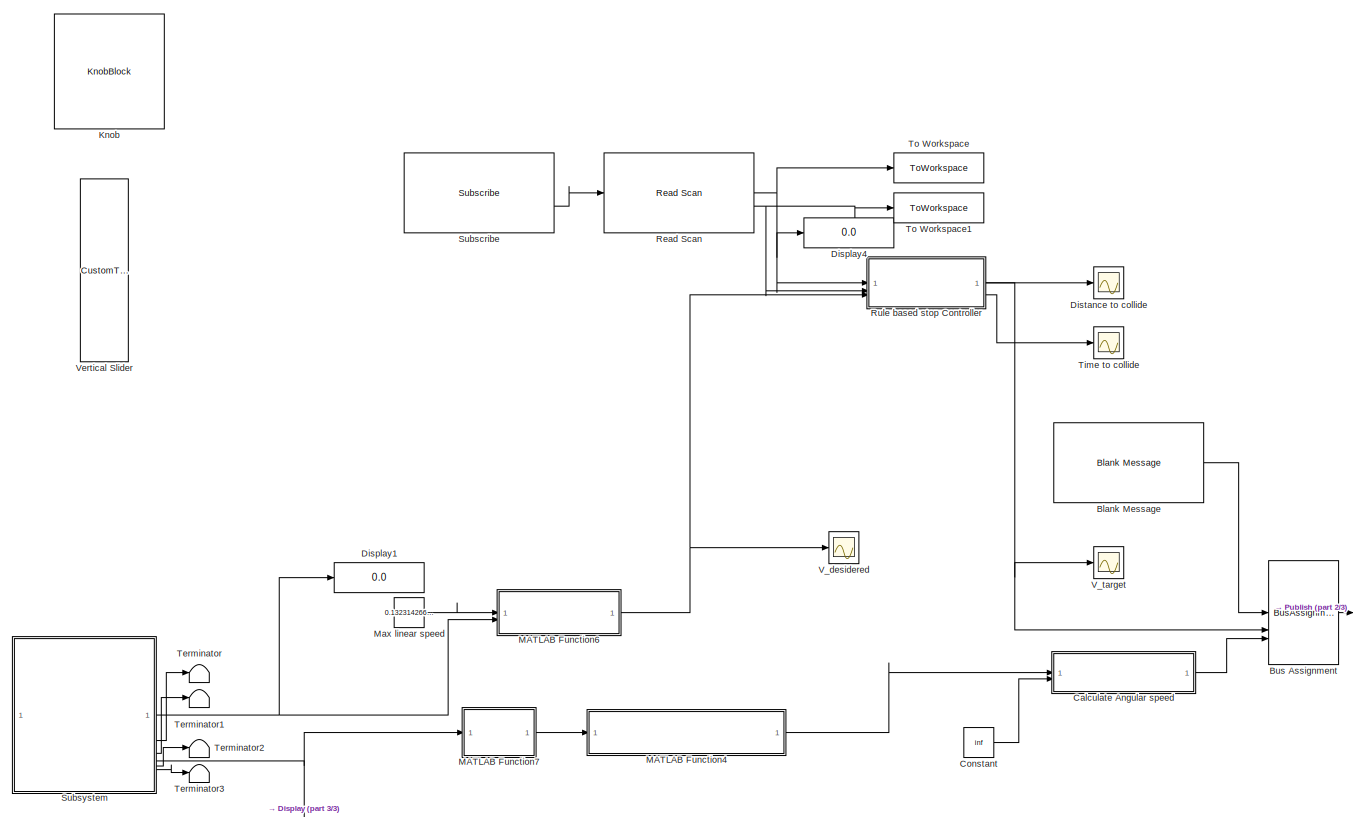
[diagram: root canvas - part 1/3, most of the canvas]
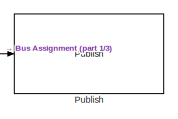
[diagram: root canvas - part 2/3, middle right region]
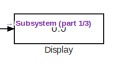
[diagram: root canvas - part 3/3, bottom left region]
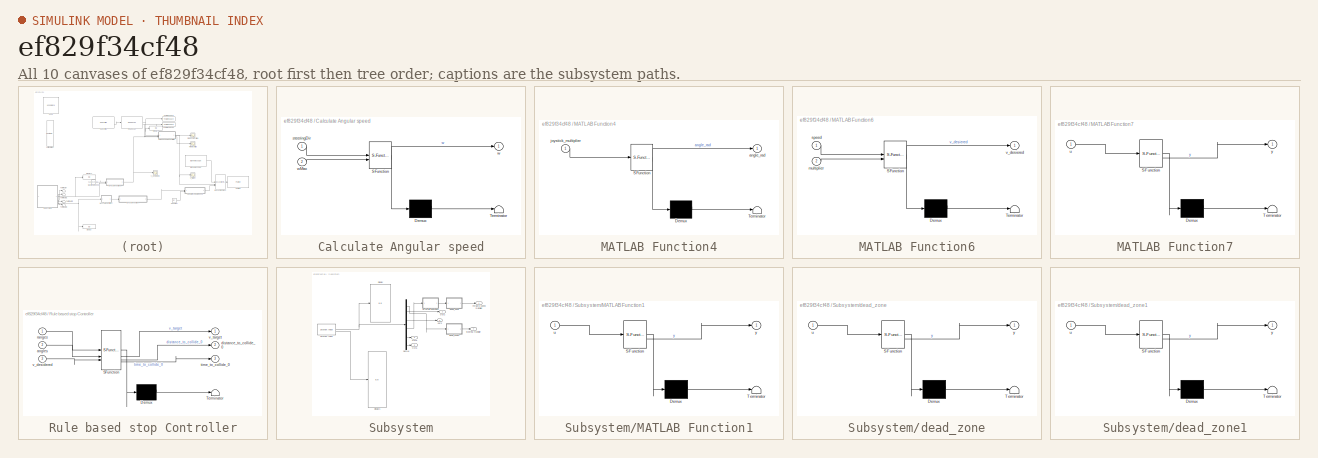
[diagram: thumbnail index - all 10 canvases of the model, root first then tree order]
MODEL slx_ef829f34cf48
KIND model
CONFIG AbsTol = auto
CONFIG EnableMultiTasking = off
CONFIG FixedStep = auto
CONFIG MaxStep = auto
CONFIG MinStep = auto
CONFIG RelTol = 1e-3
CONFIG SampleTimeConstraint = Unconstrained
CONFIG SolverName = FixedStepAuto
CONFIG StartTime = 0.0
CONFIG StopTime = inf
WORKSPACE source: mxarray member
WORKSPACE SL_ROS_VariableLengthArrays_MaxSizes: object (value not decoded)
BLOCK [Reference] Blank Message  REF=ros2lib/Blank Message  (lib defined in slx_3c1549211f48)
  SourceBlock = ros2lib/Blank Message
  SourceType = ROS2 Blank Message
BLOCK [BusAssignment] Bus Assignment
  AssignedSignals = linear.x,angular.z
BLOCK [SubSystem] Calculate Angular speed
  ErrorFcn = Stateflow.Translate.translate
  LibrarySourceBlock = simulink/User-Defined\nFunctions/MATLAB Function
  PermitHierarchicalResolution = ExplicitOnly
  SFBlockType = MATLAB Function
  TreatAsAtomicUnit = on
BLOCK [Demux] Calculate Angular speed/ Demux 
  Outputs = 1
BLOCK [S-Function] Calculate Angular speed/ SFunction 
  EnableBusSupport = on
  FunctionName = sf_sfun
  PortCounts = [2 2]
  SFcnIsStateOwnerBlock = off
  SFunctionDeploymentMode = off
  Tag = Stateflow S-Function 14
BLOCK [Terminator] Calculate Angular speed/ Terminator 
BLOCK [Inport] Calculate Angular speed/steeringDir
BLOCK [Outport] Calculate Angular speed/w
BLOCK [Inport] Calculate Angular speed/wMax
  Port = 2
BLOCK [Constant] Constant
  Value = inf
BLOCK [Display] Display
  Decimation = 1
BLOCK [Display] Display1
  Decimation = 1
BLOCK [Display] Display4
  Decimation = 1
BLOCK [Scope] Distance to collide
  Floating = off
  NumInputPorts = 1
  ScopeSpecificationString = Simulink.scopes.TimeScopeBlockCfg('CurrentConfiguration', extmgr.ConfigurationSet(extmgr.Configuration('Core','General UI',true),extmgr.Configuration('Core','Source UI',true),extmgr.Configuration('Sources','WiredSimulink',true,'DataLoggingVariableName','ScopeData1'),extmgr.Configuration('Visuals','Time Domain',true,'SerializedDisplays',{struct('MinYLimReal','0.57362','MaxYLimReal','3.32598','YLabe...<+1503ch>
BLOCK [KnobBlock] Knob
  ScaleMax = 90
  ScaleMin = -90
BLOCK [SubSystem] MATLAB Function4
  ErrorFcn = Stateflow.Translate.translate
  LibrarySourceBlock = simulink/User-Defined\nFunctions/MATLAB Function
  PermitHierarchicalResolution = ExplicitOnly
  SFBlockType = MATLAB Function
  SystemSampleTime = 0.01
  TreatAsAtomicUnit = on
BLOCK [Demux] MATLAB Function4/ Demux 
  Outputs = 1
BLOCK [S-Function] MATLAB Function4/ SFunction 
  EnableBusSupport = on
  FunctionName = sf_sfun
  PortCounts = [1 2]
  SFcnIsStateOwnerBlock = off
  SFunctionDeploymentMode = off
  Tag = Stateflow S-Function 6
BLOCK [Terminator] MATLAB Function4/ Terminator 
BLOCK [Outport] MATLAB Function4/angle_rad
BLOCK [Inport] MATLAB Function4/joystick_multiplier
BLOCK [SubSystem] MATLAB Function6
  ErrorFcn = Stateflow.Translate.translate
  LibrarySourceBlock = simulink/User-Defined\nFunctions/MATLAB Function
  PermitHierarchicalResolution = ExplicitOnly
  SFBlockType = MATLAB Function
  SystemSampleTime = 0.01
  TreatAsAtomicUnit = on
BLOCK [Demux] MATLAB Function6/ Demux 
  Outputs = 1
BLOCK [S-Function] MATLAB Function6/ SFunction 
  EnableBusSupport = on
  FunctionName = sf_sfun
  PortCounts = [2 2]
  SFcnIsStateOwnerBlock = off
  SFunctionDeploymentMode = off
  Tag = Stateflow S-Function 11
BLOCK [Terminator] MATLAB Function6/ Terminator 
BLOCK [Inport] MATLAB Function6/multiplier
  Port = 2
BLOCK [Inport] MATLAB Function6/speed
BLOCK [Outport] MATLAB Function6/v_desiered
BLOCK [SubSystem] MATLAB Function7
  ErrorFcn = Stateflow.Translate.translate
  LibrarySourceBlock = simulink/User-Defined\nFunctions/MATLAB Function
  PermitHierarchicalResolution = ExplicitOnly
  SFBlockType = MATLAB Function
  TreatAsAtomicUnit = on
BLOCK [Demux] MATLAB Function7/ Demux 
  Outputs = 1
BLOCK [S-Function] MATLAB Function7/ SFunction 
  EnableBusSupport = on
  FunctionName = sf_sfun
  PortCounts = [1 2]
  SFcnIsStateOwnerBlock = off
  SFunctionDeploymentMode = off
  Tag = Stateflow S-Function 12
BLOCK [Terminator] MATLAB Function7/ Terminator 
BLOCK [Inport] MATLAB Function7/u
BLOCK [Outport] MATLAB Function7/y
BLOCK [Constant] Max linear speed
  Value = 0.1323142669296515
BLOCK [Reference] Publish  REF=ros2lib/Publish  (lib defined in slx_3c1549211f48)
  SourceBlock = ros2lib/Publish
  SourceType = ROS2 Publish
BLOCK [Reference] Read Scan  REF=ros2lib/Read Scan  (lib defined in slx_3c1549211f48)
  SourceBlock = ros2lib/Read Scan
  SourceType = ros.slros2.internal.block.ReadScan
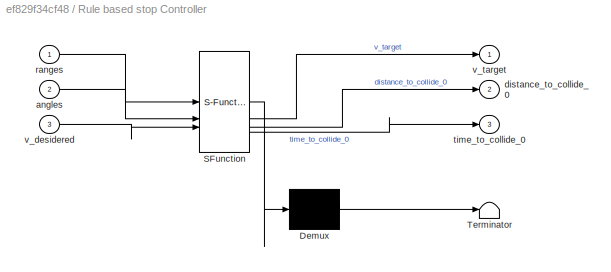
BLOCK [SubSystem] Rule based stop Controller
  ErrorFcn = Stateflow.Translate.translate
  LibrarySourceBlock = simulink/User-Defined\nFunctions/MATLAB Function
  PermitHierarchicalResolution = ExplicitOnly
  SFBlockType = MATLAB Function
  TreatAsAtomicUnit = on
BLOCK [Demux] Rule based stop Controller/ Demux 
  Outputs = 1
BLOCK [S-Function] Rule based stop Controller/ SFunction 
  EnableBusSupport = on
  FunctionName = sf_sfun
  PortCounts = [3 4]
  SFcnIsStateOwnerBlock = off
  SFunctionDeploymentMode = off
  Tag = Stateflow S-Function 8
BLOCK [Terminator] Rule based stop Controller/ Terminator 
BLOCK [Inport] Rule based stop Controller/angles
  Port = 2
BLOCK [Outport] Rule based stop Controller/distance_to_collide_0
  Port = 2
BLOCK [Inport] Rule based stop Controller/ranges
BLOCK [Outport] Rule based stop Controller/time_to_collide_0
  Port = 3
BLOCK [Inport] Rule based stop Controller/v_desidered
  Port = 3
BLOCK [Outport] Rule based stop Controller/v_target
BLOCK [Reference] Subscribe  REF=ros2lib/Subscribe  (lib defined in slx_3c1549211f48)
  SourceBlock = ros2lib/Subscribe
  SourceType = ROS2 Subscribe
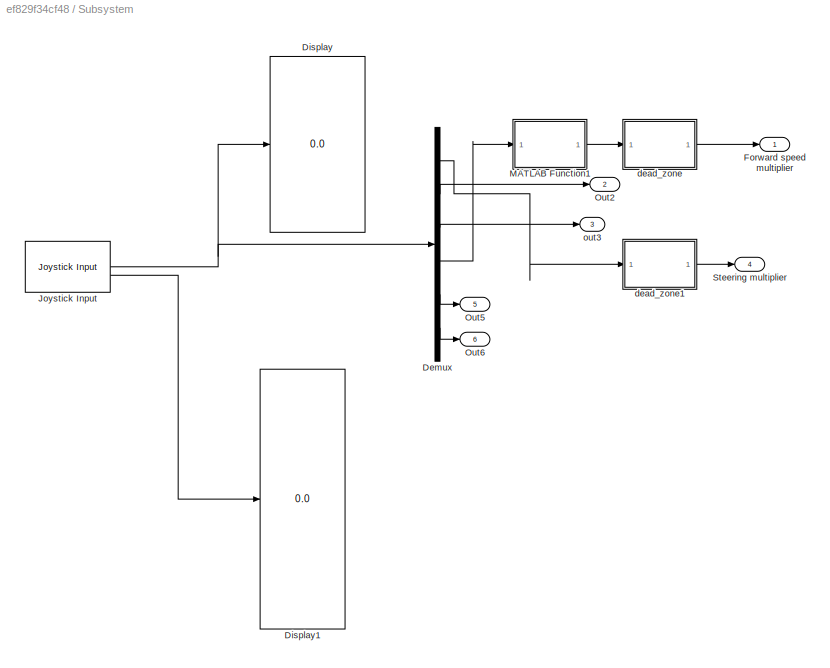
BLOCK [SubSystem] Subsystem
BLOCK [Demux] Subsystem/Demux
  Outputs = 6
BLOCK [Display] Subsystem/Display
  Decimation = 1
BLOCK [Display] Subsystem/Display1
  Decimation = 1
BLOCK [Outport] Subsystem/Forward speed multiplier
BLOCK [Reference] Subsystem/Joystick Input  REF=vrlib/Joystick Input
  SourceBlock = vrlib/Joystick Input
  SourceType = Joystick Input
BLOCK [SubSystem] Subsystem/MATLAB Function1
  ErrorFcn = Stateflow.Translate.translate
  LibrarySourceBlock = simulink/User-Defined\nFunctions/MATLAB Function
  PermitHierarchicalResolution = ExplicitOnly
  SFBlockType = MATLAB Function
  TreatAsAtomicUnit = on
BLOCK [Demux] Subsystem/MATLAB Function1/ Demux 
  Outputs = 1
BLOCK [S-Function] Subsystem/MATLAB Function1/ SFunction 
  EnableBusSupport = on
  FunctionName = sf_sfun
  PortCounts = [1 2]
  SFcnIsStateOwnerBlock = off
  SFunctionDeploymentMode = off
  Tag = Stateflow S-Function 1
BLOCK [Terminator] Subsystem/MATLAB Function1/ Terminator 
BLOCK [Inport] Subsystem/MATLAB Function1/u
BLOCK [Outport] Subsystem/MATLAB Function1/y
BLOCK [Outport] Subsystem/Out2
  Port = 2
BLOCK [Outport] Subsystem/Out5
  Port = 5
BLOCK [Outport] Subsystem/Out6
  Port = 6
BLOCK [Outport] Subsystem/Steering multiplier
  Port = 4
BLOCK [SubSystem] Subsystem/dead_zone
  ErrorFcn = Stateflow.Translate.translate
  LibrarySourceBlock = simulink/User-Defined\nFunctions/MATLAB Function
  PermitHierarchicalResolution = ExplicitOnly
  SFBlockType = MATLAB Function
  TreatAsAtomicUnit = on
BLOCK [Demux] Subsystem/dead_zone/ Demux 
  Outputs = 1
BLOCK [S-Function] Subsystem/dead_zone/ SFunction 
  EnableBusSupport = on
  FunctionName = sf_sfun
  PortCounts = [1 2]
  SFcnIsStateOwnerBlock = off
  SFunctionDeploymentMode = off
  Tag = Stateflow S-Function 3
BLOCK [Terminator] Subsystem/dead_zone/ Terminator 
BLOCK [Inport] Subsystem/dead_zone/u
BLOCK [Outport] Subsystem/dead_zone/y
BLOCK [SubSystem] Subsystem/dead_zone1
  ErrorFcn = Stateflow.Translate.translate
  LibrarySourceBlock = simulink/User-Defined\nFunctions/MATLAB Function
  PermitHierarchicalResolution = ExplicitOnly
  SFBlockType = MATLAB Function
  TreatAsAtomicUnit = on
BLOCK [Demux] Subsystem/dead_zone1/ Demux 
  Outputs = 1
BLOCK [S-Function] Subsystem/dead_zone1/ SFunction 
  EnableBusSupport = on
  FunctionName = sf_sfun
  PortCounts = [1 2]
  SFcnIsStateOwnerBlock = off
  SFunctionDeploymentMode = off
  Tag = Stateflow S-Function 4
BLOCK [Terminator] Subsystem/dead_zone1/ Terminator 
BLOCK [Inport] Subsystem/dead_zone1/u
BLOCK [Outport] Subsystem/dead_zone1/y
BLOCK [Outport] Subsystem/out3
  Port = 3
BLOCK [Terminator] Terminator
BLOCK [Terminator] Terminator1
BLOCK [Terminator] Terminator2
BLOCK [Terminator] Terminator3
BLOCK [Scope] Time to collide
  Floating = off
  NumInputPorts = 1
  ScopeSpecificationString = Simulink.scopes.TimeScopeBlockCfg('CurrentConfiguration', extmgr.ConfigurationSet(extmgr.Configuration('Core','General UI',true),extmgr.Configuration('Core','Source UI',true),extmgr.Configuration('Sources','WiredSimulink',true,'DataLoggingVariableName','ScopeData2'),extmgr.Configuration('Visuals','Time Domain',true,'SerializedDisplays',{struct('MinYLimReal','4.41594','MaxYLimReal','13.90004','YLab...<+1503ch>
BLOCK [ToWorkspace] To Workspace
  FixptAsFi = on
  MaxDataPoints = inf
  SampleTime = -1
  SaveFormat = Timeseries
  VariableName = ranges
BLOCK [ToWorkspace] To Workspace1
  FixptAsFi = on
  MaxDataPoints = inf
  SampleTime = -1
  SaveFormat = Timeseries
  VariableName = angles
BLOCK [Scope] V_desidered
  Floating = off
  NumInputPorts = 1
  ScopeSpecificationString = Simulink.scopes.TimeScopeBlockCfg('CurrentConfiguration', extmgr.ConfigurationSet(extmgr.Configuration('Core','General UI',true),extmgr.Configuration('Core','Source UI',true),extmgr.Configuration('Sources','WiredSimulink',true,'DataLoggingVariableName','ScopeData3'),extmgr.Configuration('Visuals','Time Domain',true,'SerializedDisplays',{struct('MinYLimReal','-1.00000','MaxYLimReal','1.00000','YLab...<+1474ch>
BLOCK [Scope] V_target
  Floating = off
  NumInputPorts = 1
  ScopeSpecificationString = Simulink.scopes.TimeScopeBlockCfg('CurrentConfiguration', extmgr.ConfigurationSet(extmgr.Configuration('Core','General UI',true),extmgr.Configuration('Core','Source UI',true),extmgr.Configuration('Sources','WiredSimulink',true,'DataLoggingVariableName','ScopeData4'),extmgr.Configuration('Visuals','Time Domain',true,'SerializedDisplays',{struct('MinYLimReal','-0.07439','MaxYLimReal','0.28774','YLab...<+1466ch>
BLOCK [CustomTuningWebBlock] Vertical Slider
  Configuration = {"components":[{"name":"LinearScaleComponent","settings":{"bounds":{"max":2,"min":0,"tickInterval":"auto"},"internalTickHeightScaleFactor":0.5,"labelColor":[255,255,200],"labelFont":{"font":"Arial","fontSize":12},"labelOffset":0.05,"labelTransparency":1,"needleImage":{"size":[596,842],"src":"data:image\/svg+xml;base64,PD94bWwgdmVyc2lvbj0iMS4wIiBlbmNvZGluZz0idXRmLTgiPz4NCjwhLS0gR2VuZXJhdG9yOiBBZG9i...<+5490ch>
  LabelPosition = Hide
  ShowInitialText = on
LINE Blank Message:1 -> Bus Assignment:1
LINE Bus Assignment:1 -> Publish:1
LINE Calculate Angular speed:1 -> Bus Assignment:3
LINE Constant:1 -> Calculate Angular speed:2
LINE MATLAB Function4:1 -> Calculate Angular speed:1
NET MATLAB Function6:1 -> Rule based stop Controller:3, V_desidered:1
LINE MATLAB Function7:1 -> MATLAB Function4:1
LINE Max linear speed:1 -> MATLAB Function6:1
NET Read Scan:1 -> Display4:1, Rule based stop Controller:1, To Workspace:1
NET Read Scan:2 -> Rule based stop Controller:2, To Workspace1:1
NET Rule based stop Controller:1 -> Bus Assignment:2, V_target:1
LINE Rule based stop Controller:2 -> Distance to collide:1
LINE Rule based stop Controller:3 -> Time to collide:1
LINE Subscribe:2 -> Read Scan:1
LINE Subsystem/Demux:1 -> Subsystem/dead_zone1:1
LINE Subsystem/Demux:2 -> Subsystem/Out2:1
LINE Subsystem/Demux:3 -> Subsystem/out3:1
LINE Subsystem/Demux:4 -> Subsystem/MATLAB Function1:1
LINE Subsystem/Demux:5 -> Subsystem/Out5:1
LINE Subsystem/Demux:6 -> Subsystem/Out6:1
NET Subsystem/Joystick Input:1 -> Subsystem/Demux:1, Subsystem/Display:1
LINE Subsystem/Joystick Input:2 -> Subsystem/Display1:1
LINE Subsystem/MATLAB Function1:1 -> Subsystem/dead_zone:1
LINE Subsystem/dead_zone1:1 -> Subsystem/Steering multiplier:1
LINE Subsystem/dead_zone:1 -> Subsystem/Forward speed multiplier:1
NET Subsystem:1 -> Display1:1, MATLAB Function6:2
LINE Subsystem:2 -> Terminator:1
LINE Subsystem:3 -> Terminator1:1
NET Subsystem:4 -> Display:1, MATLAB Function7:1
LINE Subsystem:5 -> Terminator2:1
LINE Subsystem:6 -> Terminator3:1
note: NET lines group one-source signal fan-out (src -> all destinations, sorted); 1:1 wires keep LINE
CHART Subsystem/MATLAB Function1 states=1 transitions=1
  STATE_LABEL 'eML_blk_kernel()'
  STATE_LABEL 'SCRIPT:\nfunction y = fcn(u)\ncentered_value = u + 0.3616;\n\noutput_end = 1;\noutput_start = -1;\ninput_end = 0.7549;\ninput_start = -0.6384;\n\nslope = (output_end - output_start) / (input_end - input_start);\n\ny = -1*(output_start + slope * (centered_value - input_start));\n'
CHART Subsystem/dead_zone states=1 transitions=1
  STATE_LABEL 'eML_blk_kernel()'
  STATE_LABEL 'SCRIPT:\nfunction y = dead_zone(u)\n\nif(abs(u) < 0.1)\n    u=0;\nend\n\ny = u;\n'
CHART Subsystem/dead_zone1 states=1 transitions=1
  STATE_LABEL 'eML_blk_kernel()'
  STATE_LABEL 'SCRIPT:\nfunction y = dead_zone(u)\n\nif(abs(u) < 0.1)\n    u=0;\nend\n\ny = u;\n'
CHART MATLAB Function4 states=1 transitions=1
  STATE_LABEL 'eML_blk_kernel()'
  STATE_LABEL 'SCRIPT:\nfunction angle_rad = fcn(joystick_multiplier)\n\nangle_rad = double(-pi/4 * joystick_multiplier);\n'
CHART Rule based stop Controller states=1 transitions=1
  STATE_LABEL 'eML_blk_kernel()'
  STATE_LABEL 'SCRIPT:\nfunction [v_target,distance_to_collide_0,time_to_collide_0]  = fcn(ranges, angles, v_desidered)\n\n    %Ranges, angles -> from lidar\n    % v -> current wheelchair linear speed\n    %Config parameters\n    semi_amplitude_collision_cone_degree = 4;\n    t_second_reaction_time_threshold = 3;\n    %--------------\n\n    collision_cone_rad = deg2rad(semi_amplitude_collision_cone_degree);\n\n    %Get matr...<+1161ch>'
CHART MATLAB Function6 states=1 transitions=1
  STATE_LABEL 'eML_blk_kernel()'
  STATE_LABEL 'SCRIPT:\nfunction v_desiered = fcn(speed, multiplier)\n\n        \n    v_desiered = speed * multiplier;\n    \n'
CHART MATLAB Function7 states=1 transitions=1
  STATE_LABEL 'eML_blk_kernel()'
  STATE_LABEL 'SCRIPT:\nfunction y = to_single(u)\n\ny = single(u);\n'
CHART Calculate Angular speed states=1 transitions=1
  STATE_LABEL 'eML_blk_kernel()'
  STATE_LABEL "SCRIPT:\nfunction w = exampleHelperComputeAngularVelocity(steeringDir, wMax)\n%EXAMPLEHELPERCOMPUTEANGULARVELOCITY Compute angular velocity\n%   W = exampleHelperComputeAngularVelocity(STEERINGDIR)\n%   returns the angular velocity W for a differential drive robot in radians\n%   per second for a given steering direction STEERINGDIR in the robot's\n%   coordinate frame in radians.\n%\n%   W = exampleHelpe...<+1442ch>"
CHART  states=0 transitions=0
CHART  states=0 transitions=0
CHART  states=0 transitions=0
CHART  states=0 transitions=0
CHART  states=0 transitions=0
CHART  states=0 transitions=0
CHART  states=0 transitions=0
CHART  states=0 transitions=0
